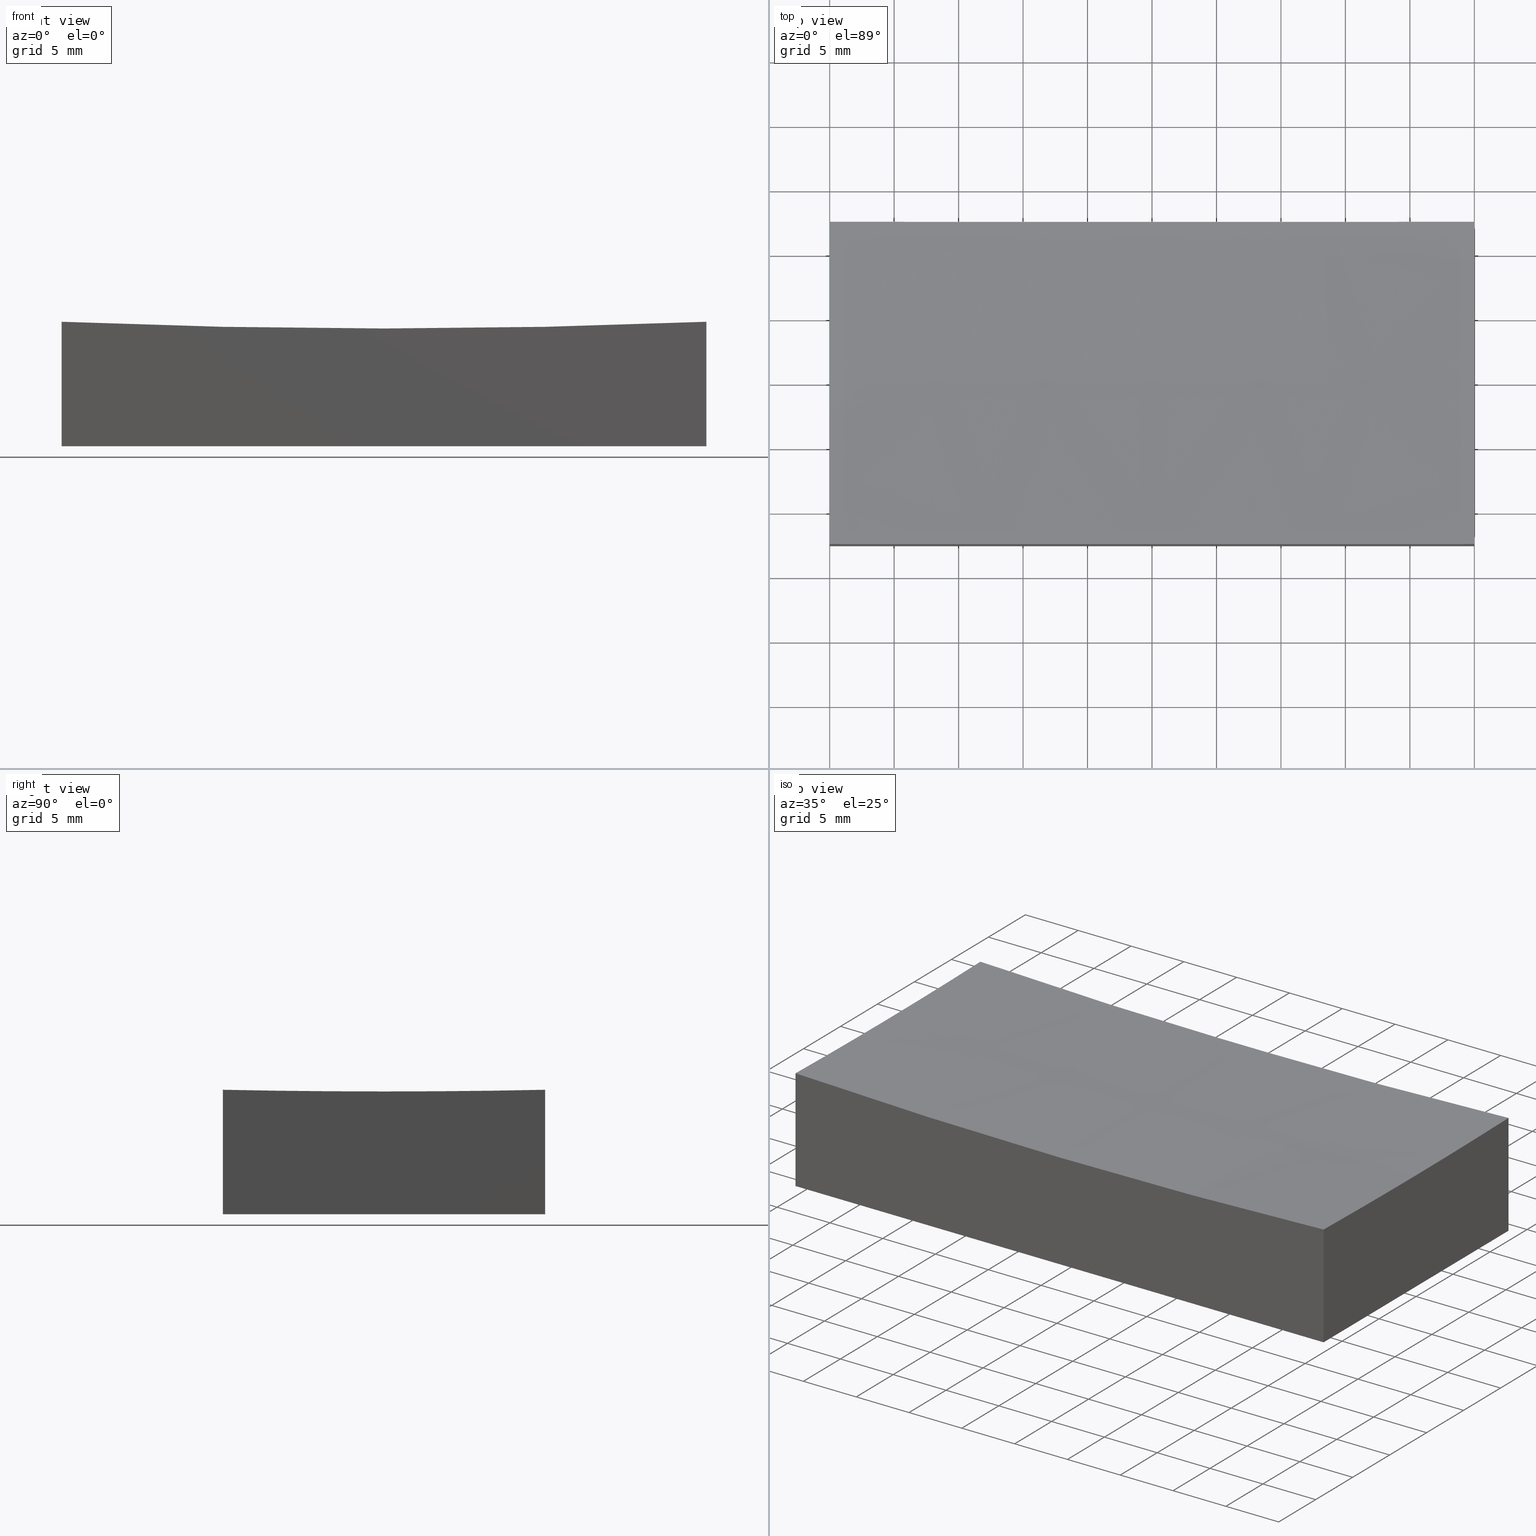
[diagram: canonical four-view strip — front | top / right | iso, engineering-drawing reading convention]
A machine part, canonical four-view strip (front | top / right | iso — engineering-drawing reading convention). The complete STEP part file that produces these views, byte-faithful:
ISO-10303-21;
HEADER;
FILE_DESCRIPTION (( 'STEP AP214' ),
    '1' );
FILE_NAME ('GM13-50x25-300.STEP',
    '2024-08-13T03:18:00',
    ( 'Windows User' ),
    ( 'P R C' ),
    'SwSTEP 2.0',
    'SolidWorks 2022',
    '' );
FILE_SCHEMA (( 'AUTOMOTIVE_DESIGN' ));
ENDSEC;

DATA;
#1 =( GEOMETRIC_REPRESENTATION_CONTEXT ( 3 ) GLOBAL_UNCERTAINTY_ASSIGNED_CONTEXT ( ( #232 ) ) GLOBAL_UNIT_ASSIGNED_CONTEXT ( ( #17, #231, #134 ) ) REPRESENTATION_CONTEXT ( 'NONE', 'WORKASPACE' ) );
#2 = DIRECTION ( 'NONE',  ( 0.000000000000000000, 0.000000000000000000, 1.000000000000000000 ) ) ;
#3 = FACE_OUTER_BOUND ( 'NONE', #208, .T. ) ;
#4 = DIRECTION ( 'NONE',  ( -0.000000000000000000, -1.000000000000000000, -0.000000000000000000 ) ) ;
#5 = EDGE_CURVE ( 'NONE', #229, #81, #246, .T. ) ;
#6 = EDGE_LOOP ( 'NONE', ( #169, #49, #207, #103, #128 ) ) ;
#7 = DIRECTION ( 'NONE',  ( 1.000000000000000000, 0.000000000000000000, 0.000000000000000000 ) ) ;
#8 = VERTEX_POINT ( 'NONE', #211 ) ;
#9 = CARTESIAN_POINT ( 'NONE',  ( 25.00000000000000355, 12.50000000000000000, 0.000000000000000000 ) ) ;
#10 = PRODUCT ( 'GM13-50x25-300', 'GM13-50x25-300', '', ( #75 ) ) ;
#11 = PLANE ( 'NONE',  #234 ) ;
#12 = ORIENTED_EDGE ( 'NONE', *, *, #101, .F. ) ;
#13 = CARTESIAN_POINT ( 'NONE',  ( 25.00000000000000000, -6.938893903907228378E-15, 609.0000000000000000 ) ) ;
#14 = PLANE ( 'NONE',  #115 ) ;
#15 = AXIS2_PLACEMENT_3D ( 'NONE', #215, #137, #93 ) ;
#16 = CIRCLE ( 'NONE', #189, 599.8697775350913162 ) ;
#17 =( LENGTH_UNIT ( ) NAMED_UNIT ( * ) SI_UNIT ( .MILLI., .METRE. ) );
#18 =( NAMED_UNIT ( * ) SI_UNIT ( $, .STERADIAN. ) SOLID_ANGLE_UNIT ( ) );
#19 = CIRCLE ( 'NONE', #119, 599.4789404140898341 ) ;
#20 = LINE ( 'NONE', #57, #233 ) ;
#21 = CARTESIAN_POINT ( 'NONE',  ( 25.00000000000000000, -6.938893903907228378E-15, 609.0000000000000000 ) ) ;
#22 = CARTESIAN_POINT ( 'NONE',  ( 25.00000000000000355, 12.50000000000000000, 15.00000000000000000 ) ) ;
#23 = VERTEX_POINT ( 'NONE', #104 ) ;
#24 = DIRECTION ( 'NONE',  ( 0.000000000000000000, -1.000000000000000000, -0.000000000000000000 ) ) ;
#25 = ORIENTED_EDGE ( 'NONE', *, *, #101, .T. ) ;
#26 = VERTEX_POINT ( 'NONE', #9 ) ;
#27 = DIRECTION ( 'NONE',  ( 1.000000000000000000, -2.775557561562891351E-16, -0.000000000000000000 ) ) ;
#28 = EDGE_LOOP ( 'NONE', ( #59, #181, #121, #206, #12 ) ) ;
#29 = FACE_OUTER_BOUND ( 'NONE', #225, .T. ) ;
#30 = DIRECTION ( 'NONE',  ( 1.000000000000000000, 1.387778780781445676E-16, -0.000000000000000000 ) ) ;
#31 = CARTESIAN_POINT ( 'NONE',  ( -25.00000000000000000, 12.50000000000000000, 0.000000000000000000 ) ) ;
#32 = EDGE_CURVE ( 'NONE', #23, #45, #197, .T. ) ;
#33 = EDGE_CURVE ( 'NONE', #26, #229, #132, .T. ) ;
#34 = EDGE_CURVE ( 'NONE', #81, #182, #212, .T. ) ;
#35 = DIRECTION ( 'NONE',  ( 2.775557561562891351E-16, 1.000000000000000000, -0.000000000000000000 ) ) ;
#36 =( GEOMETRIC_REPRESENTATION_CONTEXT ( 3 ) GLOBAL_UNCERTAINTY_ASSIGNED_CONTEXT ( ( #192 ) ) GLOBAL_UNIT_ASSIGNED_CONTEXT ( ( #114, #194, #18 ) ) REPRESENTATION_CONTEXT ( 'NONE', 'WORKASPACE' ) );
#37 = VECTOR ( 'NONE', #170, 1000.000000000000000 ) ;
#38 = CARTESIAN_POINT ( 'NONE',  ( -24.99999999999998934, -12.49999999999999645, 9.651395263157391824 ) ) ;
#39 = VECTOR ( 'NONE', #160, 1000.000000000000000 ) ;
#40 = EDGE_LOOP ( 'NONE', ( #61, #245, #106, #25, #163 ) ) ;
#41 = DIRECTION ( 'NONE',  ( -0.000000000000000000, -0.000000000000000000, -1.000000000000000000 ) ) ;
#42 = PRESENTATION_LAYER_ASSIGNMENT (  '', '', ( #54 ) ) ;
#43 = CARTESIAN_POINT ( 'NONE',  ( 0.000000000000000000, 0.000000000000000000, 609.0000000000000000 ) ) ;
#44 = ORIENTED_EDGE ( 'NONE', *, *, #34, .T. ) ;
#45 = VERTEX_POINT ( 'NONE', #184 ) ;
#46 = VERTEX_POINT ( 'NONE', #167 ) ;
#47 = DIRECTION ( 'NONE',  ( 1.000000000000000000, 1.224646799147353207E-16, 0.000000000000000000 ) ) ;
#48 = DIRECTION ( 'NONE',  ( -1.000000000000000000, -1.387778780781445676E-16, 0.000000000000000000 ) ) ;
#49 = ORIENTED_EDGE ( 'NONE', *, *, #150, .T. ) ;
#50 = SURFACE_STYLE_FILL_AREA ( #230 ) ;
#51 = CLOSED_SHELL ( 'NONE', ( #172, #214, #72, #195, #133, #251, #174 ) ) ;
#52 = VECTOR ( 'NONE', #249, 1000.000000000000000 ) ;
#53 = CIRCLE ( 'NONE', #198, 599.8697775350914299 ) ;
#54 = STYLED_ITEM ( 'NONE', ( #196 ), #113 ) ;
#55 =( LENGTH_UNIT ( ) NAMED_UNIT ( * ) SI_UNIT ( .MILLI., .METRE. ) );
#56 = EDGE_CURVE ( 'NONE', #62, #79, #110, .T. ) ;
#57 = CARTESIAN_POINT ( 'NONE',  ( 25.00000000000000355, 12.50000000000000000, 0.000000000000000000 ) ) ;
#58 = DIRECTION ( 'NONE',  ( -2.777970041428653968E-16, -1.000000000000000000, 0.000000000000000000 ) ) ;
#59 = ORIENTED_EDGE ( 'NONE', *, *, #56, .F. ) ;
#60 = DIRECTION ( 'NONE',  ( -0.000000000000000000, 1.000000000000000000, -0.000000000000000000 ) ) ;
#61 = ORIENTED_EDGE ( 'NONE', *, *, #204, .T. ) ;
#62 = VERTEX_POINT ( 'NONE', #107 ) ;
#63 = SURFACE_SIDE_STYLE ('',( #50 ) ) ;
#64 = FACE_OUTER_BOUND ( 'NONE', #28, .T. ) ;
#65 = ORIENTED_EDGE ( 'NONE', *, *, #150, .F. ) ;
#66 = FILL_AREA_STYLE_COLOUR ( '', #70 ) ;
#67 = PRODUCT_DEFINITION_CONTEXT ( 'detailed design', #213, 'design' ) ;
#68 = SHAPE_DEFINITION_REPRESENTATION ( #216, #113 ) ;
#69 = VECTOR ( 'NONE', #161, 1000.000000000000000 ) ;
#70 = COLOUR_RGB ( '',1.000000000000000000, 1.000000000000000000, 1.000000000000000000 ) ;
#71 = AXIS2_PLACEMENT_3D ( 'NONE', #108, #48, #228 ) ;
#72 = ADVANCED_FACE ( 'NONE', ( #29 ), #11, .F. ) ;
#73 = AXIS2_PLACEMENT_3D ( 'NONE', #162, #83, #219 ) ;
#74 = APPLICATION_PROTOCOL_DEFINITION ( 'draft international standard', 'automotive_design', 1998, #213 ) ;
#75 = PRODUCT_CONTEXT ( 'NONE', #91, 'mechanical' ) ;
#76 = DIRECTION ( 'NONE',  ( 1.776356839400250149E-14, 0.000000000000000000, 1.000000000000000000 ) ) ;
#77 = LINE ( 'NONE', #240, #69 ) ;
#78 = PLANE ( 'NONE',  #73 ) ;
#79 = VERTEX_POINT ( 'NONE', #250 ) ;
#80 = CARTESIAN_POINT ( 'NONE',  ( 0.000000000000000000, 12.50000000000000000, 609.0000000000000000 ) ) ;
#81 = VERTEX_POINT ( 'NONE', #149 ) ;
#82 = EDGE_LOOP ( 'NONE', ( #144, #185, #142, #223, #65 ) ) ;
#83 = DIRECTION ( 'NONE',  ( 0.000000000000000000, -1.000000000000000000, 0.000000000000000000 ) ) ;
#84 = EDGE_LOOP ( 'NONE', ( #148, #226, #100, #157 ) ) ;
#85 = CARTESIAN_POINT ( 'NONE',  ( -24.99999999999999645, -12.50000000000000000, 15.00000000000000000 ) ) ;
#86 = PLANE ( 'NONE',  #89 ) ;
#87 = COLOUR_RGB ( '',1.000000000000000000, 1.000000000000000000, 1.000000000000000000 ) ;
#88 = AXIS2_PLACEMENT_3D ( 'NONE', #13, #27, #209 ) ;
#89 = AXIS2_PLACEMENT_3D ( 'NONE', #168, #248, #187 ) ;
#90 =( GEOMETRIC_REPRESENTATION_CONTEXT ( 3 ) GLOBAL_UNCERTAINTY_ASSIGNED_CONTEXT ( ( #135 ) ) GLOBAL_UNIT_ASSIGNED_CONTEXT ( ( #55, #236, #95 ) ) REPRESENTATION_CONTEXT ( 'NONE', 'WORKASPACE' ) );
#91 = APPLICATION_CONTEXT ( 'automotive_design' ) ;
#92 = FILL_AREA_STYLE ('',( #176 ) ) ;
#93 = DIRECTION ( 'NONE',  ( 1.000000000000000000, 0.000000000000000000, 0.000000000000000000 ) ) ;
#94 = MANIFOLD_SOLID_BREP ( '�г�-��ת1', #51 ) ;
#95 =( NAMED_UNIT ( * ) SI_UNIT ( $, .STERADIAN. ) SOLID_ANGLE_UNIT ( ) );
#96 = CARTESIAN_POINT ( 'NONE',  ( -25.00000000000000000, 12.50000000000000000, 0.000000000000000000 ) ) ;
#97 = PRODUCT_RELATED_PRODUCT_CATEGORY ( 'part', '', ( #10 ) ) ;
#98 = CARTESIAN_POINT ( 'NONE',  ( 24.99999999999999645, -12.50000000000000000, 15.00000000000000000 ) ) ;
#99 = DIRECTION ( 'NONE',  ( -1.388985020714326984E-16, 1.000000000000000000, 0.000000000000000000 ) ) ;
#100 = ORIENTED_EDGE ( 'NONE', *, *, #220, .F. ) ;
#101 = EDGE_CURVE ( 'NONE', #79, #46, #127, .T. ) ;
#102 = SPHERICAL_SURFACE ( 'NONE', #171, 600.0000000000000000 ) ;
#103 = ORIENTED_EDGE ( 'NONE', *, *, #56, .T. ) ;
#104 = CARTESIAN_POINT ( 'NONE',  ( -25.00000000000000000, -3.061616997868383043E-15, 9.521059585910096601 ) ) ;
#105 = CARTESIAN_POINT ( 'NONE',  ( -24.99999999999999645, -12.50000000000000000, 0.000000000000000000 ) ) ;
#106 = ORIENTED_EDGE ( 'NONE', *, *, #239, .F. ) ;
#107 = CARTESIAN_POINT ( 'NONE',  ( 24.99999999999999645, -12.50000000000000000, 9.651395263157391824 ) ) ;
#108 = CARTESIAN_POINT ( 'NONE',  ( -25.00000000000000000, -3.469446951953614189E-15, 609.0000000000000000 ) ) ;
#109 = AXIS2_PLACEMENT_3D ( 'NONE', #118, #178, #2 ) ;
#110 = CIRCLE ( 'NONE', #88, 599.4789404140898341 ) ;
#111 = PRODUCT_DEFINITION ( 'δ֪', '', #155, #67 ) ;
#112 = PRESENTATION_STYLE_ASSIGNMENT (( #190 ) ) ;
#113 = ADVANCED_BREP_SHAPE_REPRESENTATION ( 'GM13-50x25-300', ( #94, #123 ), #36 ) ;
#114 =( LENGTH_UNIT ( ) NAMED_UNIT ( * ) SI_UNIT ( .MILLI., .METRE. ) );
#115 = AXIS2_PLACEMENT_3D ( 'NONE', #210, #30, #199 ) ;
#116 = PRESENTATION_LAYER_ASSIGNMENT (  '', '', ( #252 ) ) ;
#117 = EDGE_CURVE ( 'NONE', #62, #182, #221, .T. ) ;
#118 = CARTESIAN_POINT ( 'NONE',  ( 0.000000000000000000, 0.000000000000000000, 609.0000000000000000 ) ) ;
#119 = AXIS2_PLACEMENT_3D ( 'NONE', #139, #120, #99 ) ;
#120 = DIRECTION ( 'NONE',  ( -1.000000000000000000, -1.387778780781445676E-16, 0.000000000000000000 ) ) ;
#121 = ORIENTED_EDGE ( 'NONE', *, *, #220, .T. ) ;
#122 = EDGE_CURVE ( 'NONE', #166, #81, #200, .T. ) ;
#123 = AXIS2_PLACEMENT_3D ( 'NONE', #173, #138, #154 ) ;
#124 = CARTESIAN_POINT ( 'NONE',  ( -24.99999999999999645, -12.50000000000000000, 15.00000000000000000 ) ) ;
#125 = DIRECTION ( 'NONE',  ( 1.000000000000000000, 0.000000000000000000, 0.000000000000000000 ) ) ;
#126 = ORIENTED_EDGE ( 'NONE', *, *, #151, .T. ) ;
#127 = CIRCLE ( 'NONE', #237, 599.4789404140898341 ) ;
#128 = ORIENTED_EDGE ( 'NONE', *, *, #239, .T. ) ;
#129 = DIRECTION ( 'NONE',  ( -1.000000000000000000, -0.000000000000000000, -0.000000000000000000 ) ) ;
#130 = DIRECTION ( 'NONE',  ( 0.000000000000000000, 0.000000000000000000, -1.000000000000000000 ) ) ;
#131 = CARTESIAN_POINT ( 'NONE',  ( -25.00000000000000000, 12.50000000000000000, 0.000000000000000000 ) ) ;
#132 = LINE ( 'NONE', #31, #218 ) ;
#133 = ADVANCED_FACE ( 'NONE', ( #3 ), #78, .F. ) ;
#134 =( NAMED_UNIT ( * ) SI_UNIT ( $, .STERADIAN. ) SOLID_ANGLE_UNIT ( ) );
#135 = UNCERTAINTY_MEASURE_WITH_UNIT (LENGTH_MEASURE( 1.000000000000000082E-05 ), #55, 'distance_accuracy_value', 'NONE');
#136 = SURFACE_STYLE_USAGE ( .BOTH. , #158 ) ;
#137 = DIRECTION ( 'NONE',  ( -0.000000000000000000, 0.000000000000000000, 1.000000000000000000 ) ) ;
#138 = DIRECTION ( 'NONE',  ( 0.000000000000000000, 0.000000000000000000, 1.000000000000000000 ) ) ;
#139 = CARTESIAN_POINT ( 'NONE',  ( -25.00000000000000000, -3.469446951953614189E-15, 609.0000000000000000 ) ) ;
#140 = AXIS2_PLACEMENT_3D ( 'NONE', #146, #227, #47 ) ;
#141 = FACE_OUTER_BOUND ( 'NONE', #84, .T. ) ;
#142 = ORIENTED_EDGE ( 'NONE', *, *, #5, .T. ) ;
#143 = CARTESIAN_POINT ( 'NONE',  ( 0.000000000000000000, 0.000000000000000000, 609.0000000000000000 ) ) ;
#144 = ORIENTED_EDGE ( 'NONE', *, *, #204, .F. ) ;
#145 = ORIENTED_EDGE ( 'NONE', *, *, #242, .F. ) ;
#146 = CARTESIAN_POINT ( 'NONE',  ( 0.000000000000000000, 0.000000000000000000, 609.0000000000000000 ) ) ;
#147 = FACE_OUTER_BOUND ( 'NONE', #82, .T. ) ;
#148 = ORIENTED_EDGE ( 'NONE', *, *, #5, .F. ) ;
#149 = CARTESIAN_POINT ( 'NONE',  ( -24.99999999999999645, -12.50000000000000000, 0.000000000000000000 ) ) ;
#150 = EDGE_CURVE ( 'NONE', #23, #166, #19, .T. ) ;
#151 = EDGE_CURVE ( 'NONE', #46, #26, #201, .T. ) ;
#152 = CIRCLE ( 'NONE', #109, 600.0000000000001137 ) ;
#153 = CIRCLE ( 'NONE', #71, 599.4789404140898341 ) ;
#154 = DIRECTION ( 'NONE',  ( 1.000000000000000000, 0.000000000000000000, 0.000000000000000000 ) ) ;
#155 = PRODUCT_DEFINITION_FORMATION_WITH_SPECIFIED_SOURCE ( '�κ�', '', #10, .NOT_KNOWN. ) ;
#156 = EDGE_CURVE ( 'NONE', #166, #62, #53, .T. ) ;
#157 = ORIENTED_EDGE ( 'NONE', *, *, #34, .F. ) ;
#158 = SURFACE_SIDE_STYLE ('',( #159 ) ) ;
#159 = SURFACE_STYLE_FILL_AREA ( #92 ) ;
#160 = DIRECTION ( 'NONE',  ( -0.000000000000000000, -0.000000000000000000, -1.000000000000000000 ) ) ;
#161 = DIRECTION ( 'NONE',  ( -0.000000000000000000, -0.000000000000000000, -1.000000000000000000 ) ) ;
#162 = CARTESIAN_POINT ( 'NONE',  ( -25.00000000000000000, 12.50000000000000000, 15.00000000000000000 ) ) ;
#163 = ORIENTED_EDGE ( 'NONE', *, *, #193, .T. ) ;
#164 = DIRECTION ( 'NONE',  ( 0.000000000000000000, -1.000000000000000000, -0.000000000000000000 ) ) ;
#165 = ORIENTED_EDGE ( 'NONE', *, *, #33, .T. ) ;
#166 = VERTEX_POINT ( 'NONE', #38 ) ;
#167 = CARTESIAN_POINT ( 'NONE',  ( 25.00000000000000355, 12.50000000000000000, 9.651395263157391824 ) ) ;
#168 = CARTESIAN_POINT ( 'NONE',  ( 25.00000000000000355, 12.50000000000000000, 15.00000000000000000 ) ) ;
#169 = ORIENTED_EDGE ( 'NONE', *, *, #32, .F. ) ;
#170 = DIRECTION ( 'NONE',  ( 1.000000000000000000, 0.000000000000000000, 0.000000000000000000 ) ) ;
#171 = AXIS2_PLACEMENT_3D ( 'NONE', #143, #24, #7 ) ;
#172 = ADVANCED_FACE ( 'NONE', ( #238 ), #222, .F. ) ;
#173 = CARTESIAN_POINT ( 'NONE',  ( 0.000000000000000000, 0.000000000000000000, 0.000000000000000000 ) ) ;
#174 = ADVANCED_FACE ( 'NONE', ( #244 ), #102, .F. ) ;
#175 = ORIENTED_EDGE ( 'NONE', *, *, #117, .F. ) ;
#176 = FILL_AREA_STYLE_COLOUR ( '', #87 ) ;
#177 = APPLICATION_PROTOCOL_DEFINITION ( 'draft international standard', 'automotive_design', 1998, #91 ) ;
#178 = DIRECTION ( 'NONE',  ( 0.000000000000000000, 1.000000000000000000, -0.000000000000000000 ) ) ;
#179 = DIRECTION ( 'NONE',  ( -0.000000000000000000, -0.000000000000000000, -1.000000000000000000 ) ) ;
#180 = CARTESIAN_POINT ( 'NONE',  ( 0.000000000000000000, -12.49999999999999645, 609.0000000000000000 ) ) ;
#181 = ORIENTED_EDGE ( 'NONE', *, *, #117, .T. ) ;
#182 = VERTEX_POINT ( 'NONE', #205 ) ;
#183 = ORIENTED_EDGE ( 'NONE', *, *, #193, .F. ) ;
#184 = CARTESIAN_POINT ( 'NONE',  ( 3.670038055528952072E-14, 0.000000000000000000, 9.000000000000007105 ) ) ;
#185 = ORIENTED_EDGE ( 'NONE', *, *, #242, .T. ) ;
#186 = DIRECTION ( 'NONE',  ( 0.000000000000000000, 1.000000000000000000, 0.000000000000000000 ) ) ;
#187 = DIRECTION ( 'NONE',  ( -2.775557561562891351E-16, -1.000000000000000000, 0.000000000000000000 ) ) ;
#188 = MECHANICAL_DESIGN_GEOMETRIC_PRESENTATION_REPRESENTATION (  '', ( #252 ), #1 ) ;
#189 = AXIS2_PLACEMENT_3D ( 'NONE', #80, #60, #130 ) ;
#190 = SURFACE_STYLE_USAGE ( .BOTH. , #63 ) ;
#191 = VECTOR ( 'NONE', #41, 1000.000000000000000 ) ;
#192 = UNCERTAINTY_MEASURE_WITH_UNIT (LENGTH_MEASURE( 1.000000000000000082E-05 ), #114, 'distance_accuracy_value', 'NONE');
#193 = EDGE_CURVE ( 'NONE', #46, #8, #16, .T. ) ;
#194 =( NAMED_UNIT ( * ) PLANE_ANGLE_UNIT ( ) SI_UNIT ( $, .RADIAN. ) );
#195 = ADVANCED_FACE ( 'NONE', ( #64 ), #86, .F. ) ;
#196 = PRESENTATION_STYLE_ASSIGNMENT (( #136 ) ) ;
#197 = CIRCLE ( 'NONE', #140, 600.0000000000000000 ) ;
#198 = AXIS2_PLACEMENT_3D ( 'NONE', #180, #4, #76 ) ;
#199 = DIRECTION ( 'NONE',  ( -1.387778780781445676E-16, 1.000000000000000000, 0.000000000000000000 ) ) ;
#200 = LINE ( 'NONE', #124, #224 ) ;
#201 = LINE ( 'NONE', #22, #39 ) ;
#202 = MECHANICAL_DESIGN_GEOMETRIC_PRESENTATION_REPRESENTATION (  '', ( #54 ), #90 ) ;
#203 = ORIENTED_EDGE ( 'NONE', *, *, #122, .T. ) ;
#204 = EDGE_CURVE ( 'NONE', #8, #23, #153, .T. ) ;
#205 = CARTESIAN_POINT ( 'NONE',  ( 24.99999999999999645, -12.50000000000000000, 0.000000000000000000 ) ) ;
#206 = ORIENTED_EDGE ( 'NONE', *, *, #151, .F. ) ;
#207 = ORIENTED_EDGE ( 'NONE', *, *, #156, .T. ) ;
#208 = EDGE_LOOP ( 'NONE', ( #183, #126, #165, #145 ) ) ;
#209 = DIRECTION ( 'NONE',  ( -2.777970041428653968E-16, -1.000000000000000000, 0.000000000000000000 ) ) ;
#210 = CARTESIAN_POINT ( 'NONE',  ( -25.00000000000000000, 12.50000000000000000, 15.00000000000000000 ) ) ;
#211 = CARTESIAN_POINT ( 'NONE',  ( -25.00000000000000000, 12.50000000000000000, 9.651395263157391824 ) ) ;
#212 = LINE ( 'NONE', #105, #37 ) ;
#213 = APPLICATION_CONTEXT ( 'automotive_design' ) ;
#214 = ADVANCED_FACE ( 'NONE', ( #147 ), #14, .F. ) ;
#215 = CARTESIAN_POINT ( 'NONE',  ( 0.000000000000000000, 0.000000000000000000, 0.000000000000000000 ) ) ;
#216 = PRODUCT_DEFINITION_SHAPE ( 'NONE', 'NONE',  #111 ) ;
#217 = PLANE ( 'NONE',  #15 ) ;
#218 = VECTOR ( 'NONE', #129, 1000.000000000000000 ) ;
#219 = DIRECTION ( 'NONE',  ( 0.000000000000000000, -0.000000000000000000, -1.000000000000000000 ) ) ;
#220 = EDGE_CURVE ( 'NONE', #182, #26, #20, .T. ) ;
#221 = LINE ( 'NONE', #98, #191 ) ;
#222 = SPHERICAL_SURFACE ( 'NONE', #235, 600.0000000000000000 ) ;
#223 = ORIENTED_EDGE ( 'NONE', *, *, #122, .F. ) ;
#224 = VECTOR ( 'NONE', #179, 1000.000000000000000 ) ;
#225 = EDGE_LOOP ( 'NONE', ( #243, #203, #44, #175 ) ) ;
#226 = ORIENTED_EDGE ( 'NONE', *, *, #33, .F. ) ;
#227 = DIRECTION ( 'NONE',  ( 1.224646799147353207E-16, -1.000000000000000000, -7.964984221775759500E-36 ) ) ;
#228 = DIRECTION ( 'NONE',  ( -1.388985020714326984E-16, 1.000000000000000000, 0.000000000000000000 ) ) ;
#229 = VERTEX_POINT ( 'NONE', #96 ) ;
#230 = FILL_AREA_STYLE ('',( #66 ) ) ;
#231 =( NAMED_UNIT ( * ) PLANE_ANGLE_UNIT ( ) SI_UNIT ( $, .RADIAN. ) );
#232 = UNCERTAINTY_MEASURE_WITH_UNIT (LENGTH_MEASURE( 1.000000000000000082E-05 ), #17, 'distance_accuracy_value', 'NONE');
#233 = VECTOR ( 'NONE', #35, 1000.000000000000000 ) ;
#234 = AXIS2_PLACEMENT_3D ( 'NONE', #85, #186, #247 ) ;
#235 = AXIS2_PLACEMENT_3D ( 'NONE', #43, #164, #125 ) ;
#236 =( NAMED_UNIT ( * ) PLANE_ANGLE_UNIT ( ) SI_UNIT ( $, .RADIAN. ) );
#237 = AXIS2_PLACEMENT_3D ( 'NONE', #21, #241, #58 ) ;
#238 = FACE_OUTER_BOUND ( 'NONE', #40, .T. ) ;
#239 = EDGE_CURVE ( 'NONE', #79, #45, #152, .T. ) ;
#240 = CARTESIAN_POINT ( 'NONE',  ( -25.00000000000000000, 12.50000000000000000, 15.00000000000000000 ) ) ;
#241 = DIRECTION ( 'NONE',  ( 1.000000000000000000, -2.775557561562891351E-16, -0.000000000000000000 ) ) ;
#242 = EDGE_CURVE ( 'NONE', #8, #229, #77, .T. ) ;
#243 = ORIENTED_EDGE ( 'NONE', *, *, #156, .F. ) ;
#244 = FACE_OUTER_BOUND ( 'NONE', #6, .T. ) ;
#245 = ORIENTED_EDGE ( 'NONE', *, *, #32, .T. ) ;
#246 = LINE ( 'NONE', #131, #52 ) ;
#247 = DIRECTION ( 'NONE',  ( 0.000000000000000000, -0.000000000000000000, 1.000000000000000000 ) ) ;
#248 = DIRECTION ( 'NONE',  ( -1.000000000000000000, 2.775557561562891351E-16, 0.000000000000000000 ) ) ;
#249 = DIRECTION ( 'NONE',  ( 1.387778780781445676E-16, -1.000000000000000000, 0.000000000000000000 ) ) ;
#250 = CARTESIAN_POINT ( 'NONE',  ( 25.00000000000000000, 0.000000000000000000, 9.521059585910096601 ) ) ;
#251 = ADVANCED_FACE ( 'NONE', ( #141 ), #217, .F. ) ;
#252 = STYLED_ITEM ( 'NONE', ( #112 ), #94 ) ;
ENDSEC;
END-ISO-10303-21;
